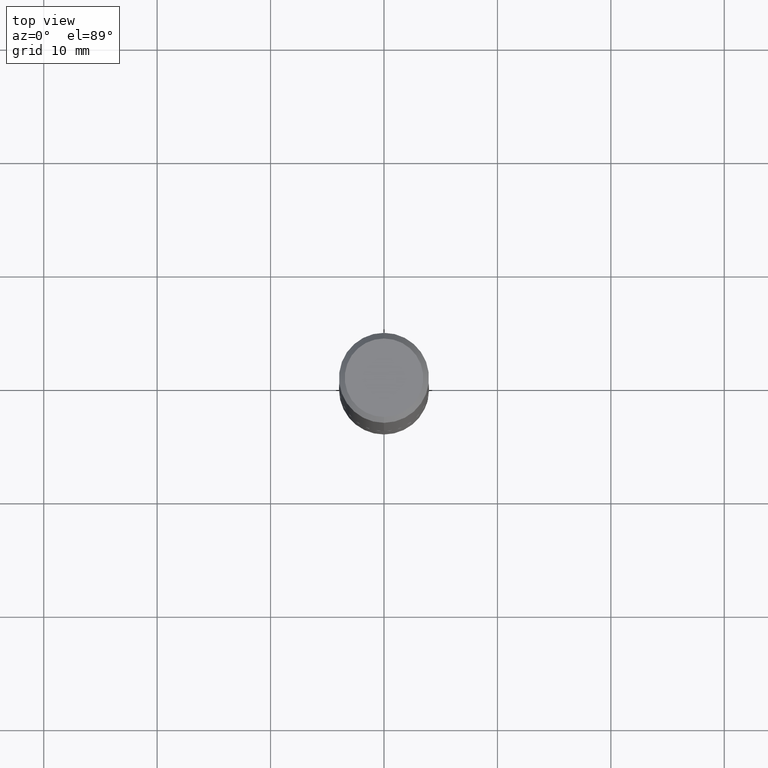
[diagram: clean part render]
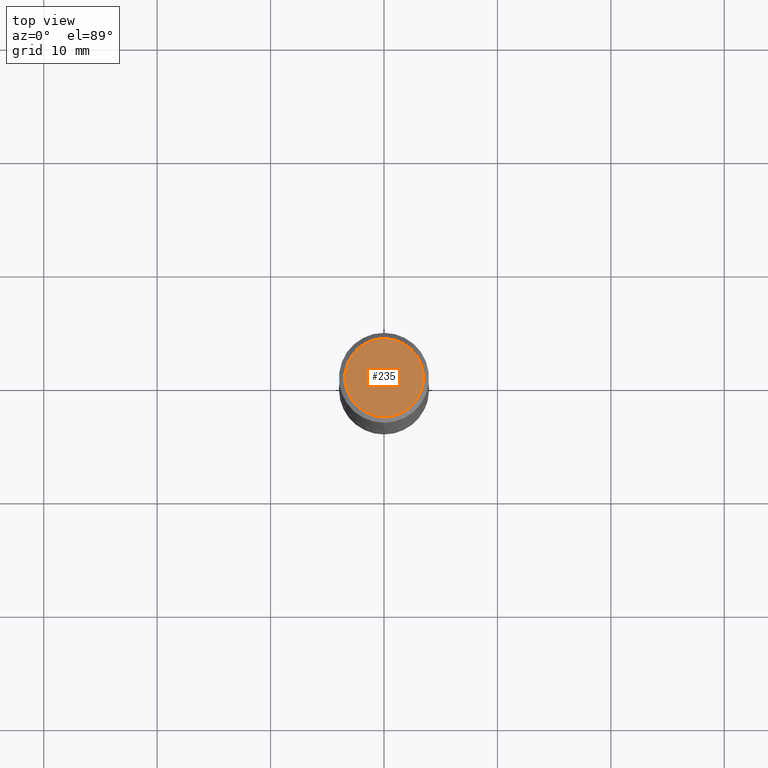
[diagram: same view with one face highlighted and labeled with its STEP entity id]
A machine part, top view. The second image highlights one B-rep face of the part: STEP entity #235.
In plain terms, the highlighted planar face has unit normal (0, -0, -1).
Its self-contained STEP definition (entity closure, byte-faithful):
#19 = DIRECTION ( 'NONE',  ( -6.982962677686267499E-15, -1.000000000000000000, 3.490233802714798958E-15 ) ) ;
#37 = DIRECTION ( 'NONE',  ( -6.982962677686267499E-15, -1.000000000000000000, 3.490233802714798958E-15 ) ) ;
#42 = EDGE_CURVE ( 'NONE', #97, #243, #276, .T. ) ;
#49 = ORIENTED_EDGE ( 'NONE', *, *, #42, .T. ) ;
#50 = DIRECTION ( 'NONE',  ( 6.982962677686265922E-15, 1.000000000000000000, -3.490233802714798958E-15 ) ) ;
#76 = CARTESIAN_POINT ( 'NONE',  ( 3.763361966922717182E-45, -5.369250956535831612E-31, -1.538364264411020755E-16 ) ) ;
#84 = CARTESIAN_POINT ( 'NONE',  ( 1.021258291611617256E-15, 0.1362500000000001765, -6.293807820609940159E-16 ) ) ;
#97 = VERTEX_POINT ( 'NONE', #293 ) ;
#115 = AXIS2_PLACEMENT_3D ( 'NONE', #358, #360, #50 ) ;
#232 = DIRECTION ( 'NONE',  ( -2.446339956007467928E-29, 3.490233802714798564E-15, 1.000000000000000000 ) ) ;
#235 = ADVANCED_FACE ( 'NONE', ( #339 ), #236, .F. ) ;
#236 = PLANE ( 'NONE',  #115 ) ;
#243 = VERTEX_POINT ( 'NONE', #84 ) ;
#256 = CARTESIAN_POINT ( 'NONE',  ( 3.763361966922717182E-45, -5.369250956535831612E-31, -1.538364264411020755E-16 ) ) ;
#276 = CIRCLE ( 'NONE', #359, 0.1362500000000001765 ) ;
#286 = ORIENTED_EDGE ( 'NONE', *, *, #404, .T. ) ;
#293 = CARTESIAN_POINT ( 'NONE',  ( -1.003347832174086870E-15, -0.1362500000000001765, 3.217079291787898648E-16 ) ) ;
#307 = DIRECTION ( 'NONE',  ( -2.446339956007467928E-29, 3.490233802714798564E-15, 1.000000000000000000 ) ) ;
#310 = EDGE_LOOP ( 'NONE', ( #286, #49 ) ) ;
#339 = FACE_OUTER_BOUND ( 'NONE', #310, .T. ) ;
#355 = AXIS2_PLACEMENT_3D ( 'NONE', #256, #307, #19 ) ;
#358 = CARTESIAN_POINT ( 'NONE',  ( 9.514286648347551409E-16, 0.1362500000000001765, -5.524625688404430397E-16 ) ) ;
#359 = AXIS2_PLACEMENT_3D ( 'NONE', #76, #232, #37 ) ;
#360 = DIRECTION ( 'NONE',  ( 2.446339956007467368E-29, -3.490233802714798958E-15, -1.000000000000000000 ) ) ;
#368 = CIRCLE ( 'NONE', #355, 0.1362500000000001765 ) ;
#404 = EDGE_CURVE ( 'NONE', #243, #97, #368, .T. ) ;